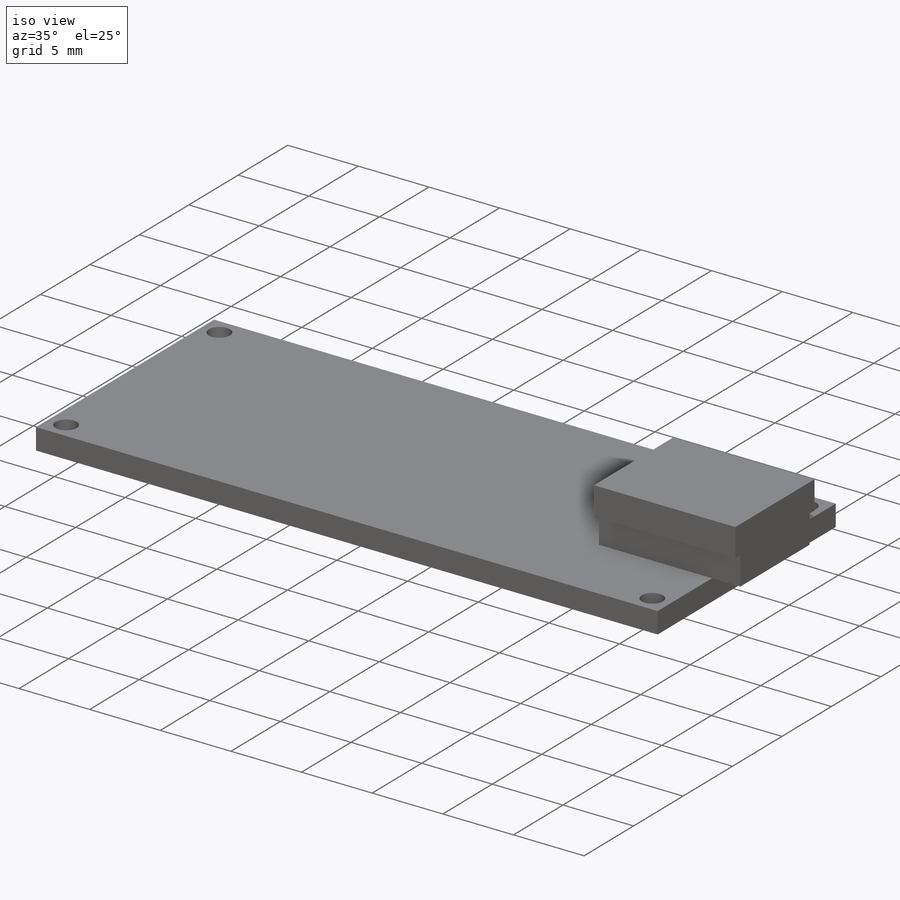
[diagram: iso view]
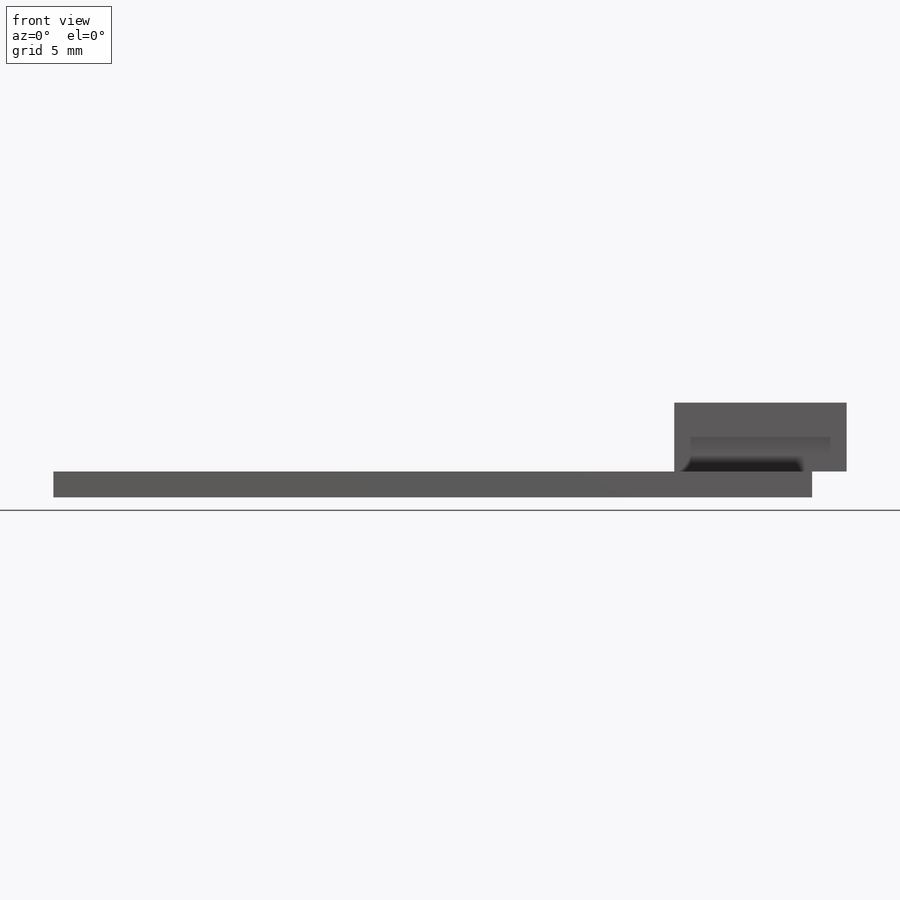
[diagram: front view]
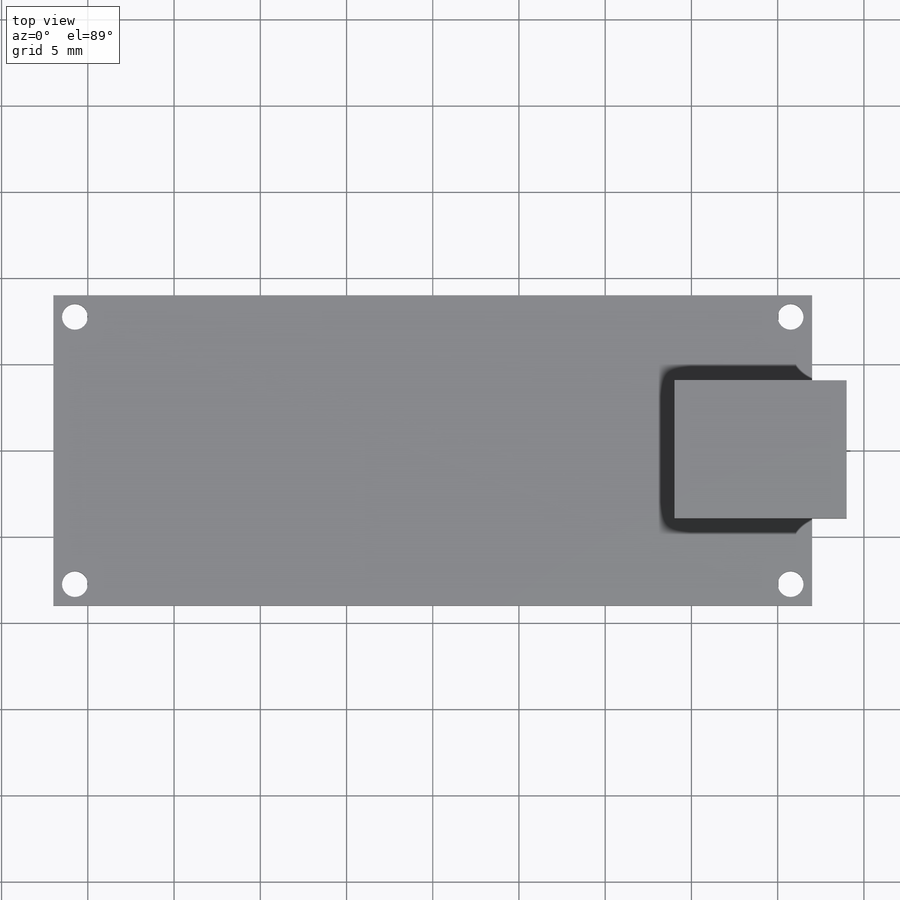
[diagram: top view]
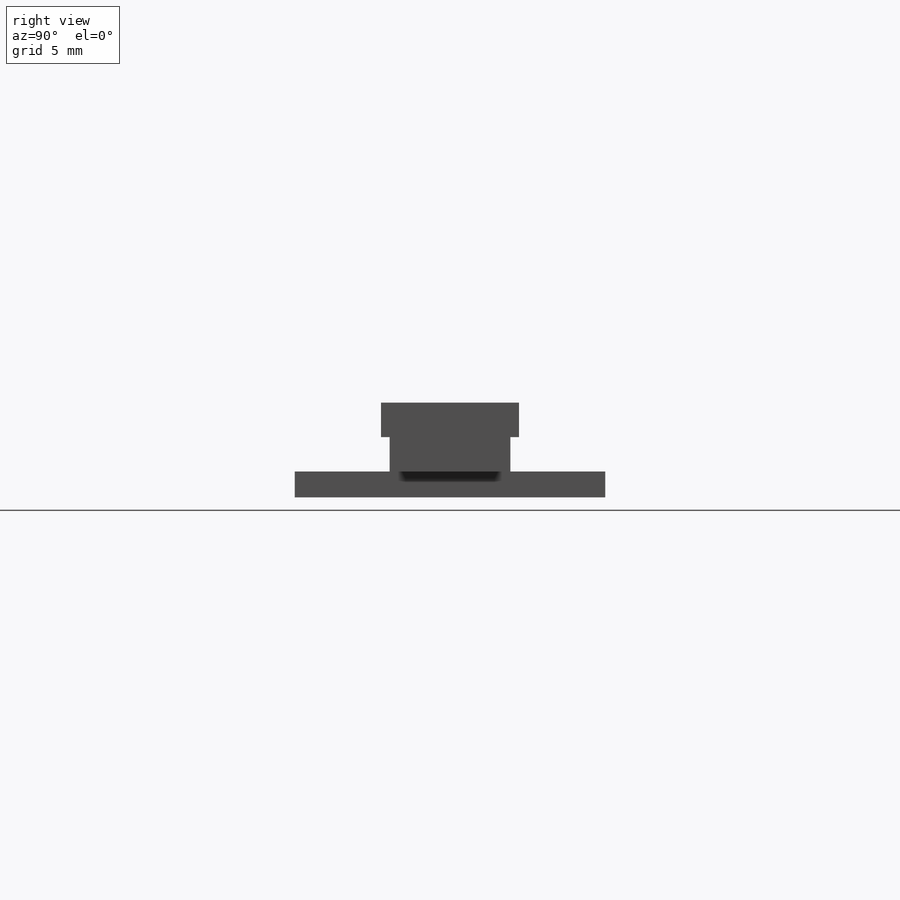
[diagram: right view]
SOLIDWORKS PART (.sldprt)
format: sldprt  version: not decoded by parser v0  size: 181,760 bytes
history: native  units: mm
features: sketch x5, plane x3, extrude x3, material x1, cut_extrude x1 (+8 scaffold rows collapsed)
feature tree (21):
  scaffold x8  (default folders/planes/origin — collapsed)
  material  "Materiale <non specificato>"
  plane  "Piano frontale"
  plane  "Piano superiore"
  plane  "Piano destro"
  sketch  "Schizzo1"  dims[D1=18.0mm D2=44.0mm]
  extrude  "Estrusione-Estrusione1"  Depth=1.5mm
  sketch  "Schizzo2"  dims[D1=1.5mm D5=1.5mm D6=1.5mm D8=1.5mm D2=1.25mm D3=1.25mm D4=1.25mm D7=1.25mm]
  cut_extrude  "Taglio-Estrusione1"  Depth=1.5mm
  sketch  "Schizzo3"
  sketch  "Schizzo4"  dims[c1.D1=3.5mm c1.D2=3.5mm c1.D3=8.0mm c1.D4=18.0mm c2.D4=90.0deg c3.D4=18.0mm c4.D4=90.0deg c5.D4=10.0mm]
  extrude  "Estrusione-Estrusione2"  Depth=2mm
  sketch  "Schizzo5"  dims[D1=8.0mm D2=10.0mm]
  extrude  "Estrusione-Estrusione3"  Depth=2mm
decode coverage: 8 of 9 modeling features carry decoded parameters
note: suppression state not decoded; provenance and decode notes live in map.json
